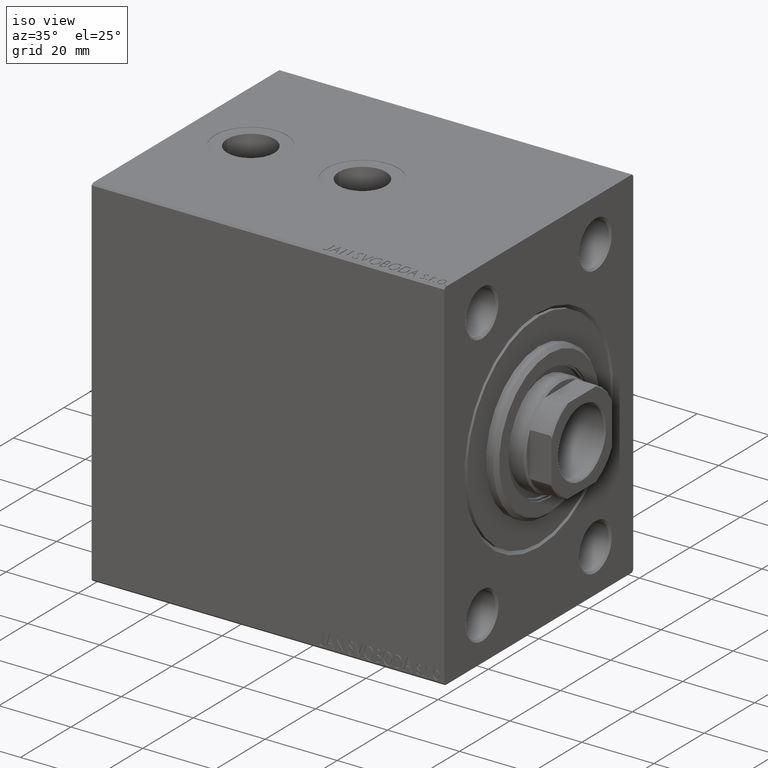
[diagram: clean part render]
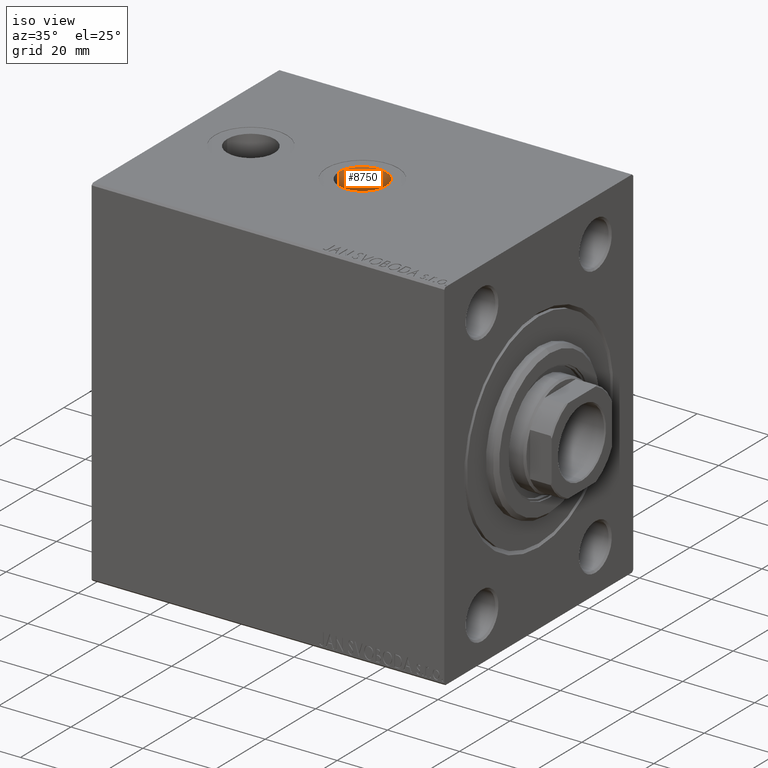
[diagram: same view with one face highlighted and labeled with its STEP entity id]
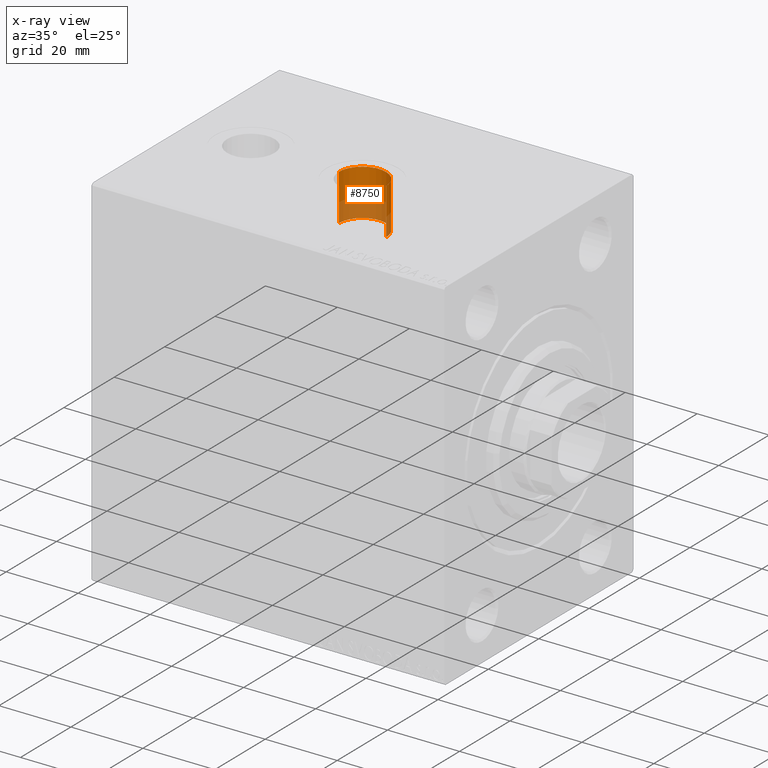
[diagram: x-ray of the same camera — body ghosted, the highlighted face saturated]
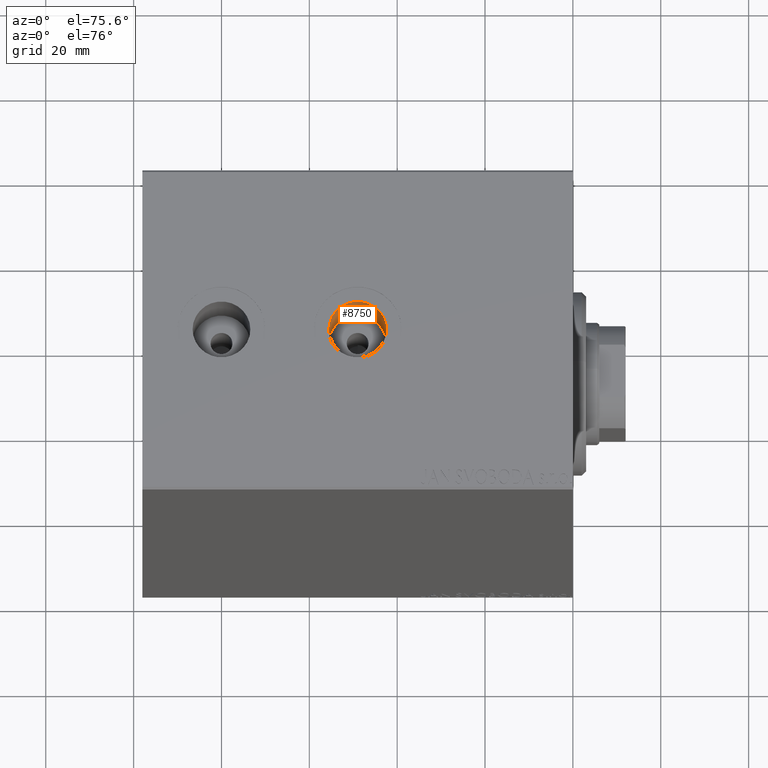
[diagram: same view with one face highlighted and labeled with its STEP entity id]
A machine part, iso view. The second image highlights one B-rep face of the part: STEP entity #8750.
The next image is the same camera in x-ray: the body ghosted, the highlighted face saturated — about 40% of this face is hidden behind the body in this view.
A second angle (auxiliary view) of the same face is appended — the face is thin or edge-on in the first view.
In plain terms, the highlighted cylindrical surface (edge-blend (fillet) strip) has radius 6.58 mm, axis along (-0, 0, 1).
Its self-contained STEP definition (entity closure, byte-faithful):
#621 = VERTEX_POINT ( 'NONE', #3297 ) ;
#3297 = CARTESIAN_POINT ( 'NONE',  ( 42.42000000000000171, 3.034628949564101458E-15, -49.90000000000000568 ) ) ;
#3823 = EDGE_CURVE ( 'NONE', #621, #13799, #19185, .T. ) ;
#4716 = DIRECTION ( 'NONE',  ( -1.000000000000000000, 0.000000000000000000, 0.000000000000000000 ) ) ;
#5899 = VECTOR ( 'NONE', #25685, 1000.000000000000000 ) ;
#7912 = CARTESIAN_POINT ( 'NONE',  ( 49.00000000000000000, 3.034628949564101458E-15, -37.00000000000000711 ) ) ;
#8142 = DIRECTION ( 'NONE',  ( 0.000000000000000000, 0.000000000000000000, -1.000000000000000000 ) ) ;
#8750 = ADVANCED_FACE ( 'NONE', ( #33637 ), #19967, .F. ) ;
#9065 = DIRECTION ( 'NONE',  ( -1.000000000000000000, 0.000000000000000000, 0.000000000000000000 ) ) ;
#9733 = DIRECTION ( 'NONE',  ( -1.000000000000000000, 0.000000000000000000, 0.000000000000000000 ) ) ;
#10975 = VERTEX_POINT ( 'NONE', #32345 ) ;
#13799 = VERTEX_POINT ( 'NONE', #36047 ) ;
#15118 = EDGE_CURVE ( 'NONE', #26457, #13799, #17081, .T. ) ;
#17081 = LINE ( 'NONE', #35717, #23704 ) ;
#19185 = CIRCLE ( 'NONE', #43872, 6.580000000000002736 ) ;
#19501 = EDGE_LOOP ( 'NONE', ( #40968, #29422, #36145, #34867 ) ) ;
#19967 = CYLINDRICAL_SURFACE ( 'NONE', #38896, 6.580000000000002736 ) ;
#21450 = CIRCLE ( 'NONE', #38883, 6.580000000000002736 ) ;
#23704 = VECTOR ( 'NONE', #41849, 1000.000000000000000 ) ;
#25685 = DIRECTION ( 'NONE',  ( -0.000000000000000000, -0.000000000000000000, -1.000000000000000000 ) ) ;
#26457 = VERTEX_POINT ( 'NONE', #37149 ) ;
#27584 = EDGE_CURVE ( 'NONE', #10975, #621, #36599, .T. ) ;
#29422 = ORIENTED_EDGE ( 'NONE', *, *, #32933, .F. ) ;
#30426 = DIRECTION ( 'NONE',  ( 0.000000000000000000, 0.000000000000000000, -1.000000000000000000 ) ) ;
#32345 = CARTESIAN_POINT ( 'NONE',  ( 42.42000000000000171, 3.034628949564101458E-15, -37.00000000000000711 ) ) ;
#32749 = CARTESIAN_POINT ( 'NONE',  ( 42.42000000000000171, 3.034628949564101458E-15, -37.00000000000000711 ) ) ;
#32933 = EDGE_CURVE ( 'NONE', #10975, #26457, #21450, .T. ) ;
#33637 = FACE_OUTER_BOUND ( 'NONE', #19501, .T. ) ;
#33853 = CARTESIAN_POINT ( 'NONE',  ( 49.00000000000000000, 3.034628949564101458E-15, -37.00000000000000711 ) ) ;
#34287 = CARTESIAN_POINT ( 'NONE',  ( 49.00000000000000000, 3.034628949564101458E-15, -49.90000000000000568 ) ) ;
#34867 = ORIENTED_EDGE ( 'NONE', *, *, #3823, .T. ) ;
#35717 = CARTESIAN_POINT ( 'NONE',  ( 55.58000000000000540, 3.840446543403060105E-15, -37.00000000000000711 ) ) ;
#36047 = CARTESIAN_POINT ( 'NONE',  ( 55.58000000000000540, 3.840446543403060105E-15, -49.90000000000000568 ) ) ;
#36145 = ORIENTED_EDGE ( 'NONE', *, *, #27584, .T. ) ;
#36599 = LINE ( 'NONE', #32749, #5899 ) ;
#37149 = CARTESIAN_POINT ( 'NONE',  ( 55.58000000000000540, 3.840446543403060105E-15, -37.00000000000000711 ) ) ;
#38883 = AXIS2_PLACEMENT_3D ( 'NONE', #7912, #8142, #4716 ) ;
#38896 = AXIS2_PLACEMENT_3D ( 'NONE', #33853, #40885, #9733 ) ;
#40885 = DIRECTION ( 'NONE',  ( -0.000000000000000000, -0.000000000000000000, -1.000000000000000000 ) ) ;
#40968 = ORIENTED_EDGE ( 'NONE', *, *, #15118, .F. ) ;
#41849 = DIRECTION ( 'NONE',  ( -0.000000000000000000, -0.000000000000000000, -1.000000000000000000 ) ) ;
#43872 = AXIS2_PLACEMENT_3D ( 'NONE', #34287, #30426, #9065 ) ;